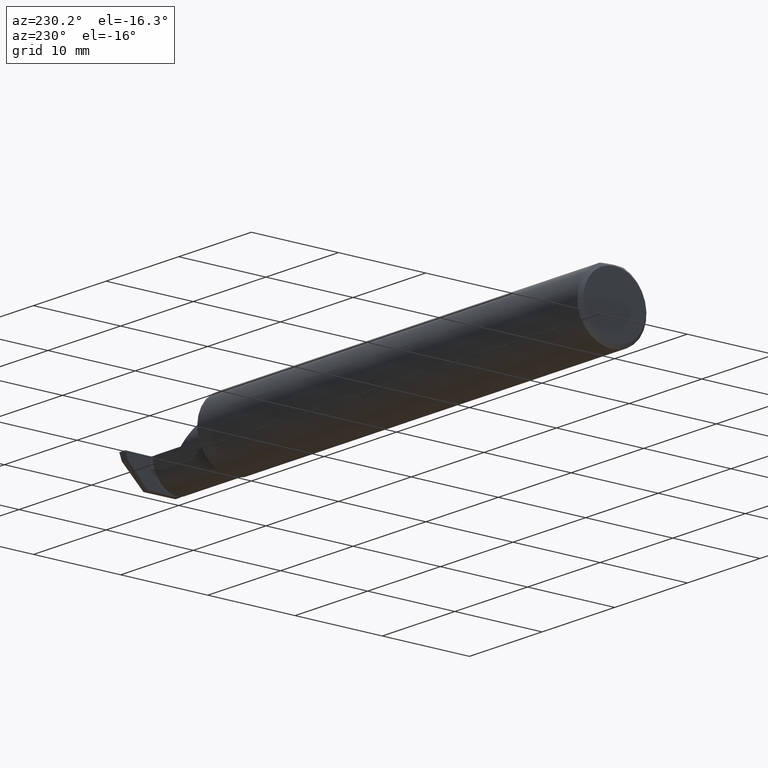
[diagram: clean part render]
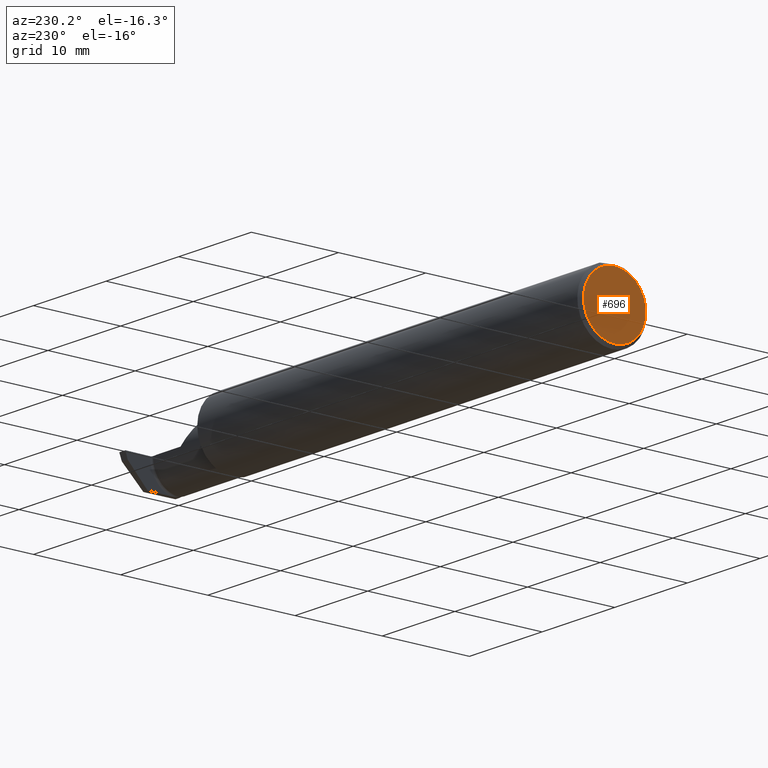
[diagram: same view with one face highlighted and labeled with its STEP entity id]
A machine part, auxiliary view. The second image highlights one B-rep face of the part: STEP entity #696.
In plain terms, the highlighted planar face has unit normal (1, 0, 0).
Its self-contained STEP definition (entity closure, byte-faithful):
#79 = DIRECTION ( 'NONE',  ( -1.000000000000000000, -0.000000000000000000, -0.000000000000000000 ) ) ;
#167 = AXIS2_PLACEMENT_3D ( 'NONE', #457, #529, #716 ) ;
#172 = CARTESIAN_POINT ( 'NONE',  ( 0.000000000000000000, 1.819825143532966472E-17, 0.1410999999999999754 ) ) ;
#370 = CARTESIAN_POINT ( 'NONE',  ( 0.000000000000000000, 0.000000000000000000, 0.000000000000000000 ) ) ;
#401 = AXIS2_PLACEMENT_3D ( 'NONE', #370, #536, #546 ) ;
#457 = CARTESIAN_POINT ( 'NONE',  ( 0.000000000000000000, 0.000000000000000000, 0.000000000000000000 ) ) ;
#529 = DIRECTION ( 'NONE',  ( -1.000000000000000000, -0.000000000000000000, -0.000000000000000000 ) ) ;
#536 = DIRECTION ( 'NONE',  ( 1.000000000000000000, 0.000000000000000000, 0.000000000000000000 ) ) ;
#546 = DIRECTION ( 'NONE',  ( 0.000000000000000000, 0.000000000000000000, -1.000000000000000000 ) ) ;
#551 = FACE_OUTER_BOUND ( 'NONE', #1057, .T. ) ;
#572 = ORIENTED_EDGE ( 'NONE', *, *, #706, .T. ) ;
#591 = VERTEX_POINT ( 'NONE', #172 ) ;
#689 = DIRECTION ( 'NONE',  ( 0.000000000000000000, 0.000000000000000000, 1.000000000000000000 ) ) ;
#696 = ADVANCED_FACE ( 'NONE', ( #551 ), #961, .F. ) ;
#706 = EDGE_CURVE ( 'NONE', #591, #1015, #1016, .T. ) ;
#716 = DIRECTION ( 'NONE',  ( 0.000000000000000000, 0.000000000000000000, 1.000000000000000000 ) ) ;
#780 = EDGE_CURVE ( 'NONE', #1015, #591, #823, .T. ) ;
#823 = CIRCLE ( 'NONE', #1034, 0.1410999999999999754 ) ;
#923 = ORIENTED_EDGE ( 'NONE', *, *, #780, .T. ) ;
#927 = CARTESIAN_POINT ( 'NONE',  ( 0.000000000000000000, 0.000000000000000000, 0.000000000000000000 ) ) ;
#960 = CARTESIAN_POINT ( 'NONE',  ( 0.000000000000000000, 0.000000000000000000, -0.1410999999999999754 ) ) ;
#961 = PLANE ( 'NONE',  #401 ) ;
#1015 = VERTEX_POINT ( 'NONE', #960 ) ;
#1016 = CIRCLE ( 'NONE', #167, 0.1410999999999999754 ) ;
#1034 = AXIS2_PLACEMENT_3D ( 'NONE', #927, #79, #689 ) ;
#1057 = EDGE_LOOP ( 'NONE', ( #923, #572 ) ) ;